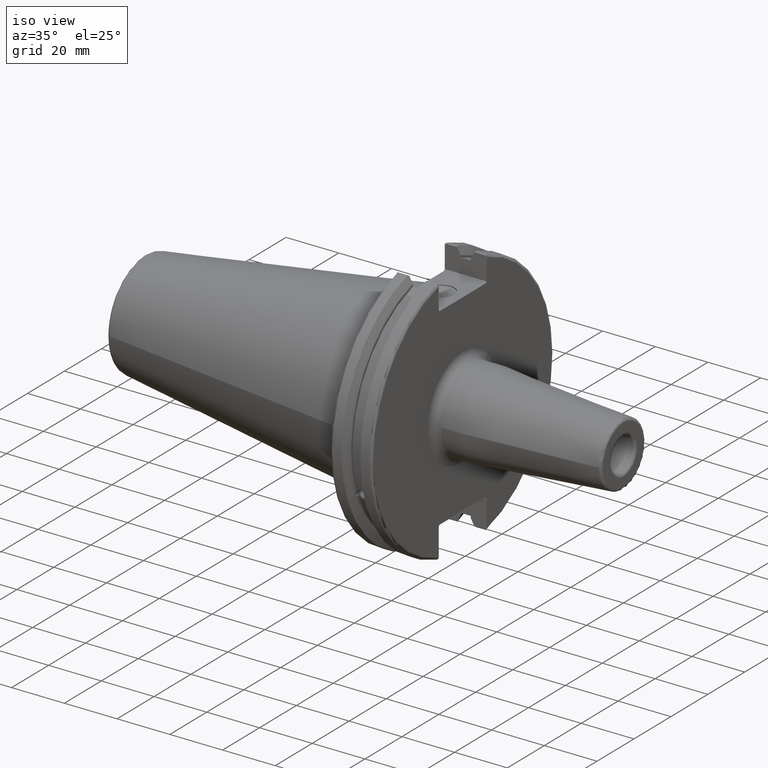
[diagram: clean part render]
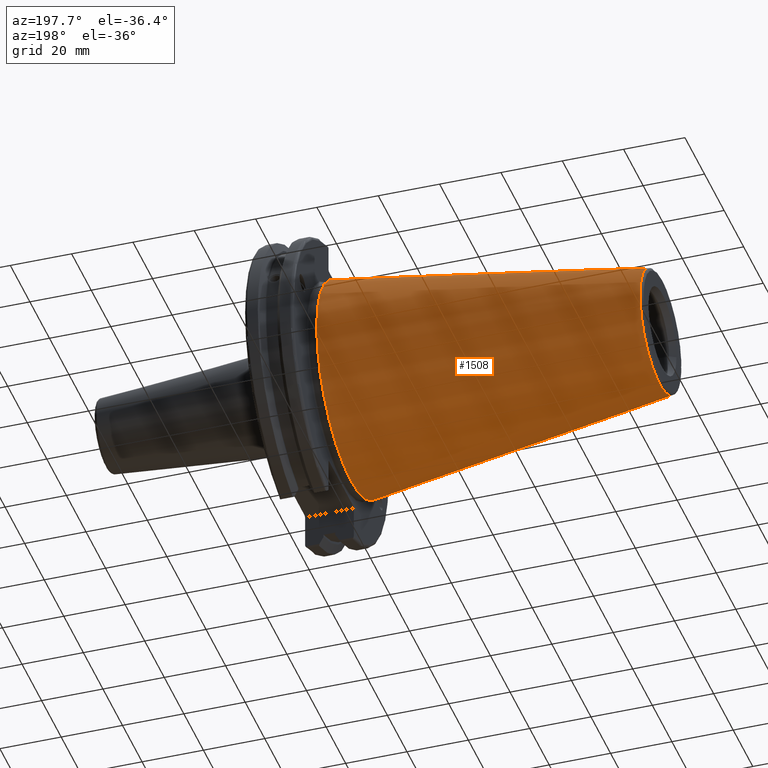
[diagram: tour spotlight — one face highlighted and labeled with its STEP entity id]
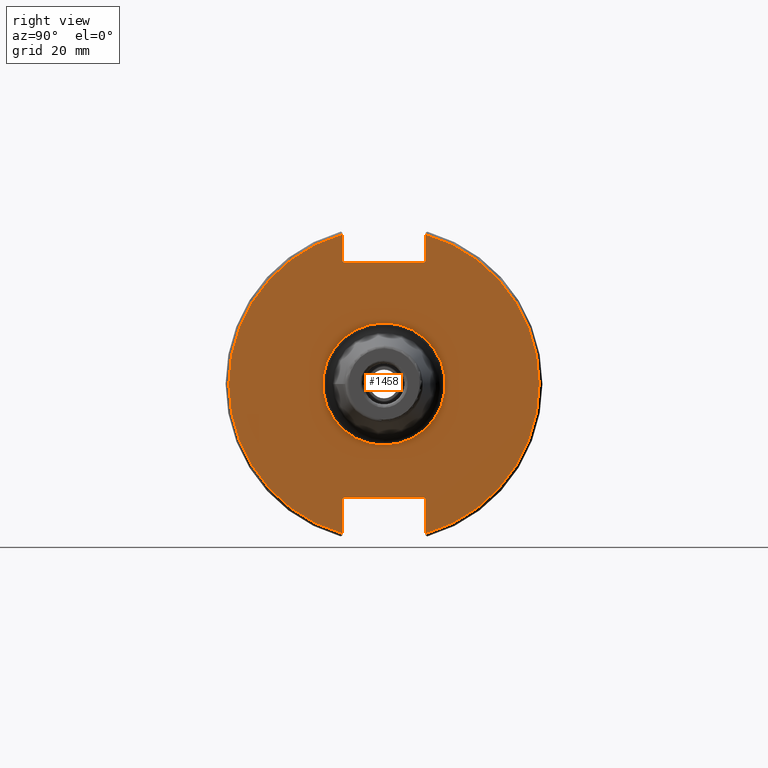
[diagram: tour spotlight — one face highlighted and labeled with its STEP entity id]
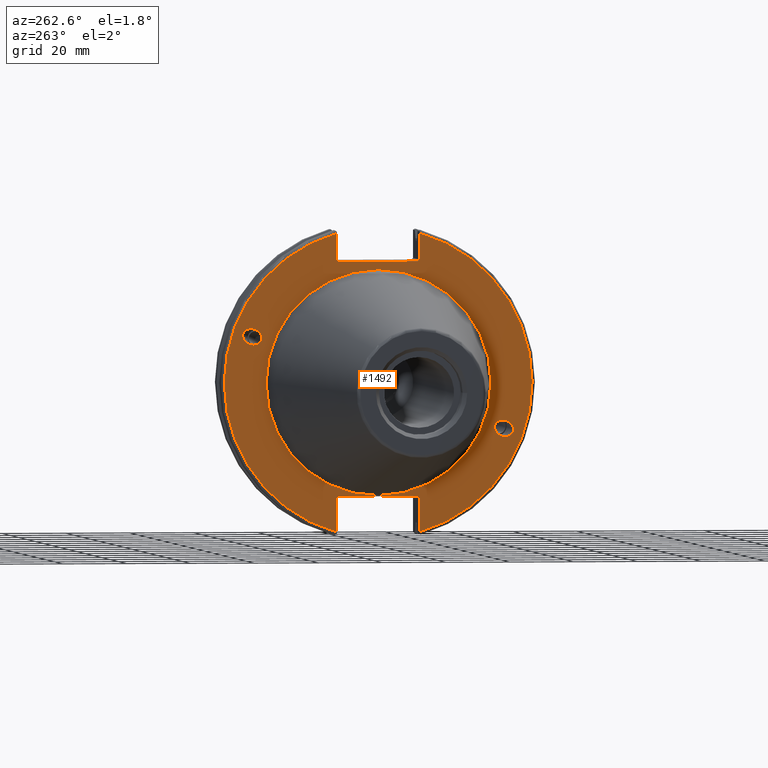
[diagram: tour spotlight — one face highlighted and labeled with its STEP entity id]
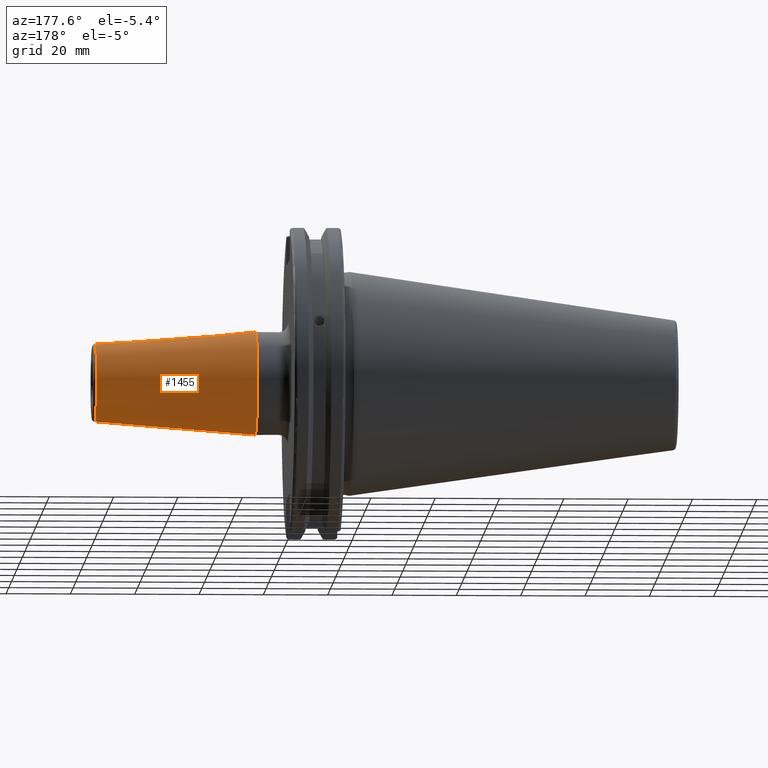
[diagram: tour spotlight — one face highlighted and labeled with its STEP entity id]
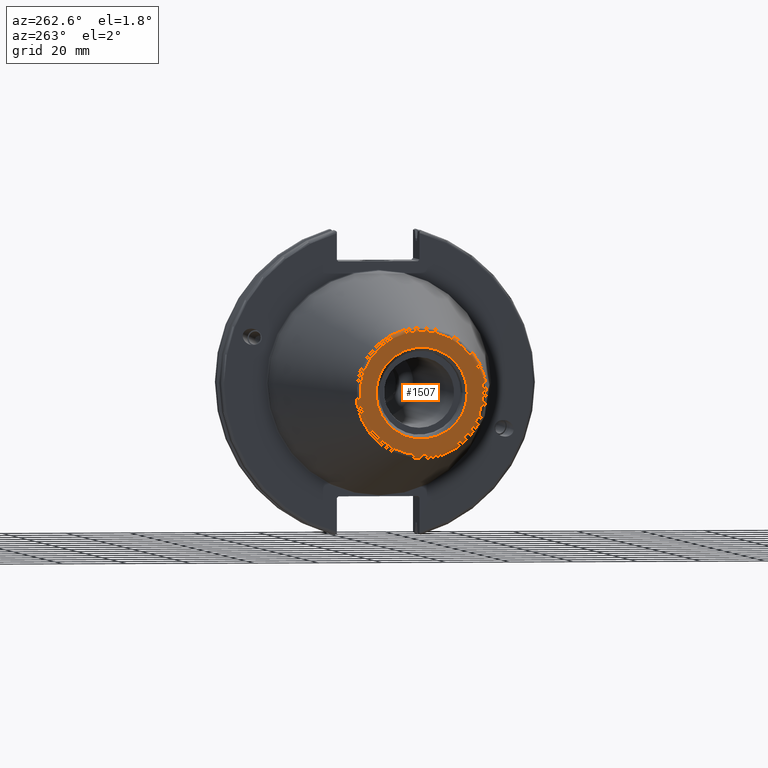
[diagram: tour spotlight — one face highlighted and labeled with its STEP entity id]
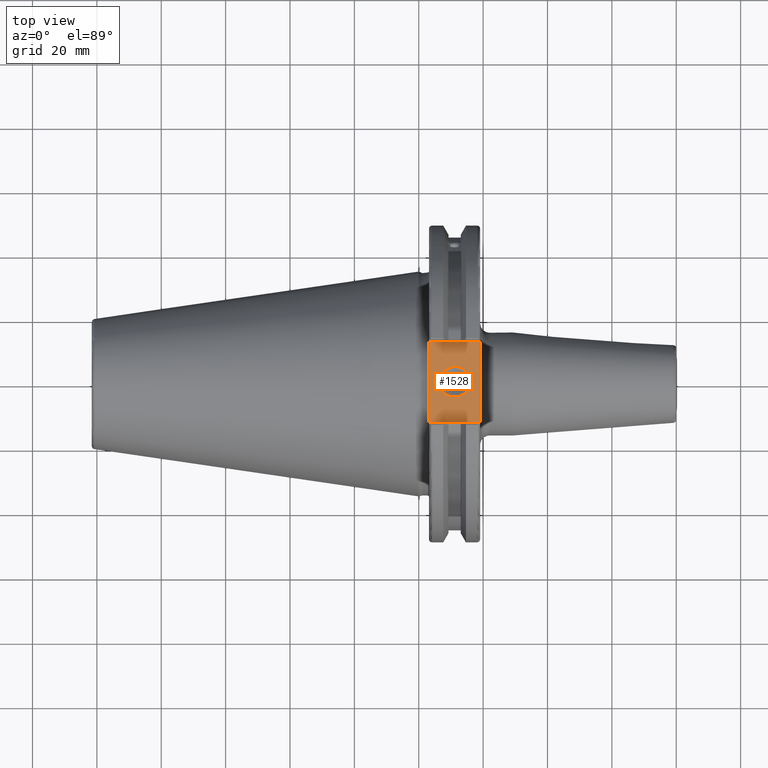
[diagram: tour spotlight — one face highlighted and labeled with its STEP entity id]
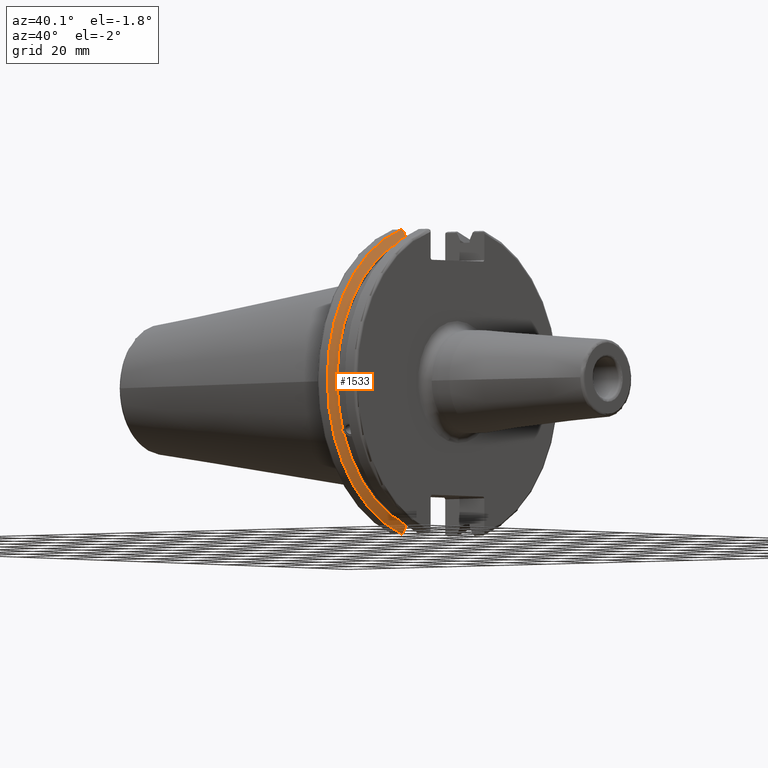
[diagram: tour spotlight — one face highlighted and labeled with its STEP entity id]
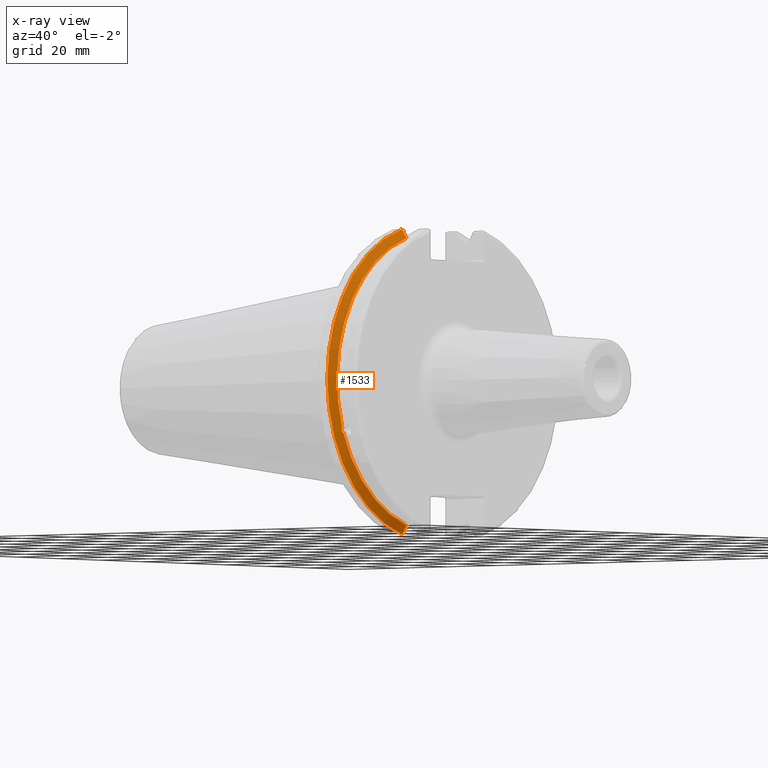
[diagram: x-ray of the same camera — body ghosted, this tour face saturated]
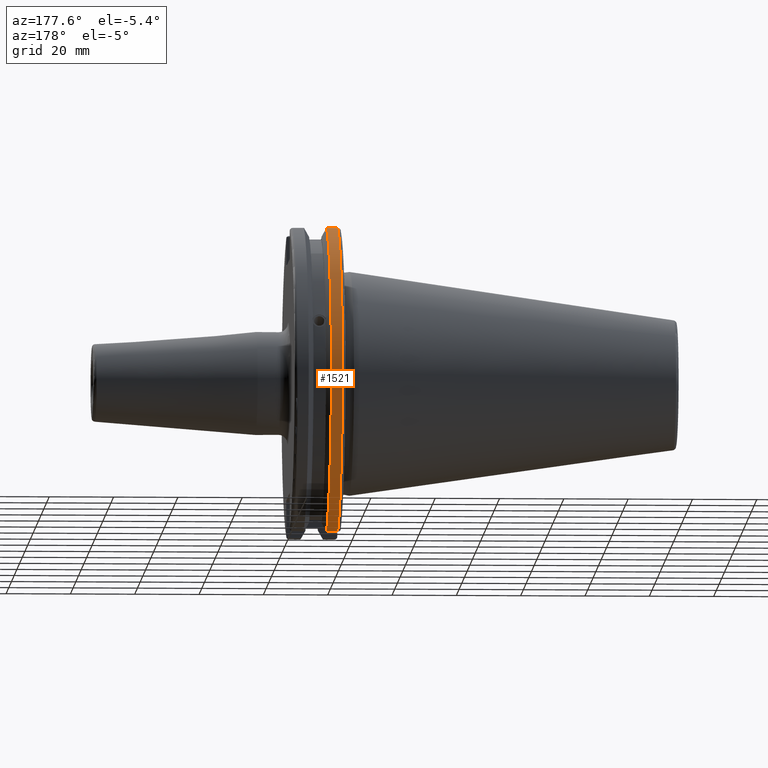
[diagram: tour spotlight — one face highlighted and labeled with its STEP entity id]
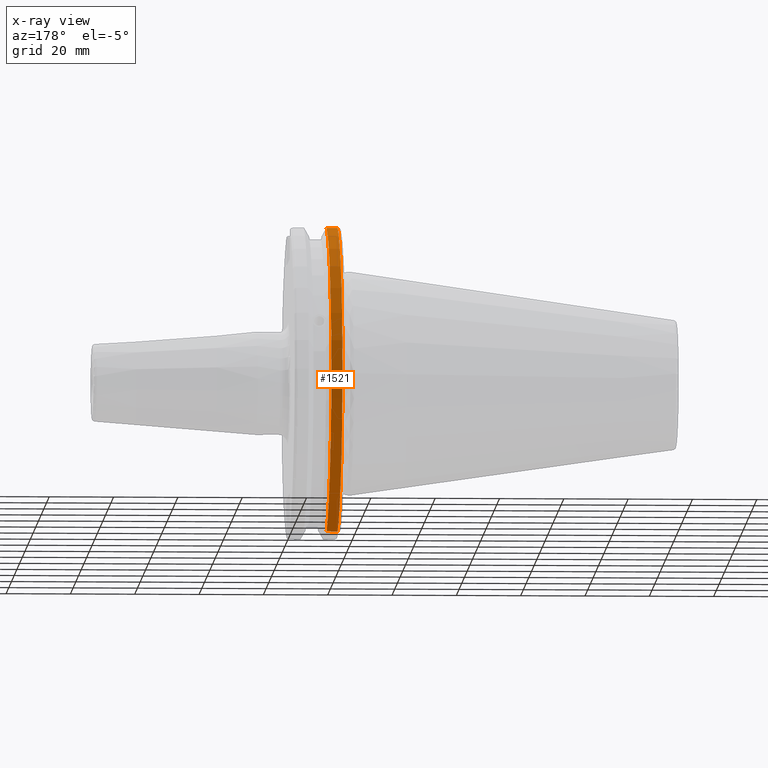
[diagram: x-ray of the same camera — body ghosted, this tour face saturated]
A machine part: a face-by-face anatomy tour. The part has 86 B-rep faces; the first image is the clean iso view, then the 8 largest visible faces are spotlighted one at a time (largest first), each with its STEP entity span.

Face 1 — auxiliary view, entity #1508. In plain terms, the highlighted conical surface has half-angle 8.297 deg.
Definition (entity closure, byte-faithful):
#78=CONICAL_SURFACE('',#1683,27.5166666666666,0.14481249823894);
#156=LINE('',#3004,#248);
#248=VECTOR('',#2048,27.5166666666666);
#409=FACE_OUTER_BOUND('',#513,.T.);
#513=EDGE_LOOP('',(#1310,#1311,#1312,#1313,#1314));
#603=CIRCLE('',#1677,20.233121911427);
#604=CIRCLE('',#1678,20.233121911427);
#608=CIRCLE('',#1684,34.925);
#755=VERTEX_POINT('',#2991);
#756=VERTEX_POINT('',#2992);
#759=VERTEX_POINT('',#3002);
#955=EDGE_CURVE('',#755,#756,#603,.T.);
#956=EDGE_CURVE('',#756,#755,#604,.T.);
#960=EDGE_CURVE('',#759,#759,#608,.T.);
#961=EDGE_CURVE('',#759,#756,#156,.T.);
#1310=ORIENTED_EDGE('',*,*,#960,.F.);
#1311=ORIENTED_EDGE('',*,*,#961,.T.);
#1312=ORIENTED_EDGE('',*,*,#955,.F.);
#1313=ORIENTED_EDGE('',*,*,#956,.F.);
#1314=ORIENTED_EDGE('',*,*,#961,.F.);
#1508=ADVANCED_FACE('',(#409),#78,.T.);
#1677=AXIS2_PLACEMENT_3D('',#2993,#2032,#2033);
#1678=AXIS2_PLACEMENT_3D('',#2994,#2034,#2035);
#1683=AXIS2_PLACEMENT_3D('',#3001,#2044,#2045);
#1684=AXIS2_PLACEMENT_3D('',#3003,#2046,#2047);
#2032=DIRECTION('center_axis',(-1.,0.,0.));
#2033=DIRECTION('ref_axis',(0.,-1.,3.06161699786838E-17));
#2034=DIRECTION('center_axis',(-1.,0.,0.));
#2035=DIRECTION('ref_axis',(0.,-1.,3.06161699786838E-17));
#2044=DIRECTION('center_axis',(1.,0.,0.));
#2045=DIRECTION('ref_axis',(0.,1.,0.));
#2046=DIRECTION('center_axis',(1.,0.,0.));
#2047=DIRECTION('ref_axis',(0.,0.,-1.));
#2048=DIRECTION('',(-0.989532981063281,0.144306893071729,1.76724974695192E-17));
#2991=CARTESIAN_POINT('',(-100.744306893072,-2.47784279855872E-15,20.233121911427));
#2992=CARTESIAN_POINT('',(-100.744306893072,-20.233121911427,-2.47784279855872E-15));
#2993=CARTESIAN_POINT('Origin',(-100.744306893072,0.,-3.09730349819841E-15));
#2994=CARTESIAN_POINT('Origin',(-100.744306893072,0.,-3.09730349819841E-15));
#3001=CARTESIAN_POINT('Origin',(-50.8,0.,0.));
#3002=CARTESIAN_POINT('',(-8.88178419700125E-15,-34.925,-4.27707894602213E-15));
#3003=CARTESIAN_POINT('Origin',(0.,0.,0.));
#3004=CARTESIAN_POINT('',(-50.8,-27.5166666666666,-3.3698197756538E-15));

Face 2 — right view, entity #1458. In plain terms, the highlighted planar face has unit normal (1, 0, 0).
Definition (entity closure, byte-faithful):
#87=LINE('',#2187,#179);
#88=LINE('',#2189,#180);
#89=LINE('',#2191,#181);
#90=LINE('',#2193,#182);
#91=LINE('',#2195,#183);
#92=LINE('',#2199,#184);
#93=LINE('',#2201,#185);
#94=LINE('',#2203,#186);
#95=LINE('',#2205,#187);
#96=LINE('',#2206,#188);
#179=VECTOR('',#1775,10.);
#180=VECTOR('',#1776,10.);
#181=VECTOR('',#1777,10.);
#182=VECTOR('',#1778,10.);
#183=VECTOR('',#1779,10.);
#184=VECTOR('',#1782,10.);
#185=VECTOR('',#1783,10.);
#186=VECTOR('',#1784,10.);
#187=VECTOR('',#1785,10.);
#188=VECTOR('',#1786,10.);
#296=FACE_BOUND('',#447,.T.);
#316=PLANE('',#1581);
#359=FACE_OUTER_BOUND('',#446,.T.);
#446=EDGE_LOOP('',(#1026,#1027,#1028,#1029,#1030,#1031,#1032,#1033,#1034,
#1035,#1036,#1037));
#447=EDGE_LOOP('',(#1038));
#556=CIRCLE('',#1578,19.);
#558=CIRCLE('',#1582,48.2125);
#559=CIRCLE('',#1583,48.2125);
#630=VERTEX_POINT('',#2176);
#631=VERTEX_POINT('',#2183);
#632=VERTEX_POINT('',#2184);
#633=VERTEX_POINT('',#2186);
#634=VERTEX_POINT('',#2188);
#635=VERTEX_POINT('',#2190);
#636=VERTEX_POINT('',#2192);
#637=VERTEX_POINT('',#2194);
#638=VERTEX_POINT('',#2196);
#639=VERTEX_POINT('',#2198);
#640=VERTEX_POINT('',#2200);
#641=VERTEX_POINT('',#2202);
#642=VERTEX_POINT('',#2204);
#784=EDGE_CURVE('',#630,#630,#556,.T.);
#787=EDGE_CURVE('',#631,#632,#558,.T.);
#788=EDGE_CURVE('',#631,#633,#87,.T.);
#789=EDGE_CURVE('',#634,#633,#88,.T.);
#790=EDGE_CURVE('',#634,#635,#89,.T.);
#791=EDGE_CURVE('',#636,#635,#90,.T.);
#792=EDGE_CURVE('',#636,#637,#91,.T.);
#793=EDGE_CURVE('',#638,#637,#559,.T.);
#794=EDGE_CURVE('',#638,#639,#92,.T.);
#795=EDGE_CURVE('',#640,#639,#93,.T.);
#796=EDGE_CURVE('',#640,#641,#94,.T.);
#797=EDGE_CURVE('',#642,#641,#95,.T.);
#798=EDGE_CURVE('',#642,#632,#96,.T.);
#1026=ORIENTED_EDGE('',*,*,#787,.F.);
#1027=ORIENTED_EDGE('',*,*,#788,.T.);
#1028=ORIENTED_EDGE('',*,*,#789,.F.);
#1029=ORIENTED_EDGE('',*,*,#790,.T.);
#1030=ORIENTED_EDGE('',*,*,#791,.F.);
#1031=ORIENTED_EDGE('',*,*,#792,.T.);
#1032=ORIENTED_EDGE('',*,*,#793,.F.);
#1033=ORIENTED_EDGE('',*,*,#794,.T.);
#1034=ORIENTED_EDGE('',*,*,#795,.F.);
#1035=ORIENTED_EDGE('',*,*,#796,.T.);
#1036=ORIENTED_EDGE('',*,*,#797,.F.);
#1037=ORIENTED_EDGE('',*,*,#798,.T.);
#1038=ORIENTED_EDGE('',*,*,#784,.F.);
#1458=ADVANCED_FACE('',(#359,#296),#316,.T.);
#1578=AXIS2_PLACEMENT_3D('',#2178,#1764,#1765);
#1581=AXIS2_PLACEMENT_3D('',#2182,#1771,#1772);
#1582=AXIS2_PLACEMENT_3D('',#2185,#1773,#1774);
#1583=AXIS2_PLACEMENT_3D('',#2197,#1780,#1781);
#1764=DIRECTION('center_axis',(1.,0.,0.));
#1765=DIRECTION('ref_axis',(0.,-1.,-1.22464679914735E-16));
#1771=DIRECTION('center_axis',(1.,0.,0.));
#1772=DIRECTION('ref_axis',(0.,0.,-1.));
#1773=DIRECTION('center_axis',(-1.,0.,0.));
#1774=DIRECTION('ref_axis',(0.,1.,-6.12323399573677E-17));
#1775=DIRECTION('',(0.,0.,-1.));
#1776=DIRECTION('',(0.,0.707106781186549,0.707106781186546));
#1777=DIRECTION('',(0.,-1.,0.));
#1778=DIRECTION('',(0.,0.707106781186549,-0.707106781186546));
#1779=DIRECTION('',(0.,0.,1.));
#1780=DIRECTION('center_axis',(-1.,0.,0.));
#1781=DIRECTION('ref_axis',(0.,-1.,1.60812264967664E-16));
#1782=DIRECTION('',(0.,0.,1.));
#1783=DIRECTION('',(0.,-0.707106781186549,-0.707106781186546));
#1784=DIRECTION('',(0.,1.,0.));
#1785=DIRECTION('',(0.,-0.707106781186549,0.707106781186546));
#1786=DIRECTION('',(0.,0.,-1.));
#2176=CARTESIAN_POINT('',(19.05,-2.32682891837997E-15,-19.));
#2178=CARTESIAN_POINT('Origin',(19.05,0.,0.));
#2182=CARTESIAN_POINT('Origin',(19.05,0.,0.));
#2183=CARTESIAN_POINT('',(19.05,12.95,46.4407434937254));
#2184=CARTESIAN_POINT('',(19.05,12.95,-46.4407434937254));
#2185=CARTESIAN_POINT('Origin',(19.05,0.,0.));
#2186=CARTESIAN_POINT('',(19.05,12.95,38.219));
#2187=CARTESIAN_POINT('',(19.05,12.95,18.8595));
#2188=CARTESIAN_POINT('',(19.05,12.45,37.719));
#2189=CARTESIAN_POINT('',(19.05,0.0327499999999836,25.30175));
#2190=CARTESIAN_POINT('',(19.05,-12.45,37.719));
#2191=CARTESIAN_POINT('',(19.05,0.,37.719));
#2192=CARTESIAN_POINT('',(19.05,-12.95,38.219));
#2193=CARTESIAN_POINT('',(19.05,-0.0327499999999817,25.30175));
#2194=CARTESIAN_POINT('',(19.05,-12.95,46.4407434937254));
#2195=CARTESIAN_POINT('',(19.05,-12.95,18.8595));
#2196=CARTESIAN_POINT('',(19.05,-12.95,-46.4407434937254));
#2197=CARTESIAN_POINT('Origin',(19.05,0.,0.));
#2198=CARTESIAN_POINT('',(19.05,-12.95,-35.806));
#2199=CARTESIAN_POINT('',(19.05,-12.95,-17.653));
#2200=CARTESIAN_POINT('',(19.05,-12.45,-35.306));
#2201=CARTESIAN_POINT('',(19.05,-0.635999999999989,-23.492));
#2202=CARTESIAN_POINT('',(19.05,12.45,-35.306));
#2203=CARTESIAN_POINT('',(19.05,-3.33066907387547E-15,-35.306));
#2204=CARTESIAN_POINT('',(19.05,12.95,-35.806));
#2205=CARTESIAN_POINT('',(19.05,0.635999999999982,-23.492));
#2206=CARTESIAN_POINT('',(19.05,12.95,-17.653));

Face 3 — auxiliary view, entity #1492. In plain terms, the highlighted planar face has unit normal (-1, 0, 0).
Definition (entity closure, byte-faithful):
#31=ELLIPSE('',#1614,3.05193647190364,2.5);
#32=ELLIPSE('',#1648,3.05193647190364,2.5);
#129=LINE('',#2778,#221);
#130=LINE('',#2780,#222);
#131=LINE('',#2782,#223);
#132=LINE('',#2784,#224);
#133=LINE('',#2786,#225);
#134=LINE('',#2790,#226);
#135=LINE('',#2792,#227);
#136=LINE('',#2794,#228);
#137=LINE('',#2796,#229);
#138=LINE('',#2797,#230);
#221=VECTOR('',#1963,10.);
#222=VECTOR('',#1964,10.);
#223=VECTOR('',#1965,10.);
#224=VECTOR('',#1966,10.);
#225=VECTOR('',#1967,10.);
#226=VECTOR('',#1970,10.);
#227=VECTOR('',#1971,10.);
#228=VECTOR('',#1972,10.);
#229=VECTOR('',#1973,10.);
#230=VECTOR('',#1974,10.);
#309=FACE_BOUND('',#494,.T.);
#310=FACE_BOUND('',#495,.T.);
#311=FACE_BOUND('',#496,.T.);
#327=PLANE('',#1654);
#393=FACE_OUTER_BOUND('',#493,.T.);
#493=EDGE_LOOP('',(#1203,#1204,#1205,#1206,#1207,#1208,#1209,#1210,#1211,
#1212,#1213,#1214));
#494=EDGE_LOOP('',(#1215));
#495=EDGE_LOOP('',(#1216));
#496=EDGE_LOOP('',(#1217));
#593=CIRCLE('',#1652,35.125);
#595=CIRCLE('',#1655,48.2125);
#596=CIRCLE('',#1656,48.2125);
#675=VERTEX_POINT('',#2503);
#713=VERTEX_POINT('',#2762);
#716=VERTEX_POINT('',#2769);
#717=VERTEX_POINT('',#2774);
#718=VERTEX_POINT('',#2775);
#719=VERTEX_POINT('',#2777);
#720=VERTEX_POINT('',#2779);
#721=VERTEX_POINT('',#2781);
#722=VERTEX_POINT('',#2783);
#723=VERTEX_POINT('',#2785);
#724=VERTEX_POINT('',#2787);
#725=VERTEX_POINT('',#2789);
#726=VERTEX_POINT('',#2791);
#727=VERTEX_POINT('',#2793);
#728=VERTEX_POINT('',#2795);
#842=EDGE_CURVE('',#675,#675,#31,.T.);
#893=EDGE_CURVE('',#713,#713,#32,.T.);
#896=EDGE_CURVE('',#716,#716,#593,.T.);
#898=EDGE_CURVE('',#717,#718,#595,.T.);
#899=EDGE_CURVE('',#717,#719,#129,.T.);
#900=EDGE_CURVE('',#720,#719,#130,.T.);
#901=EDGE_CURVE('',#720,#721,#131,.T.);
#902=EDGE_CURVE('',#722,#721,#132,.T.);
#903=EDGE_CURVE('',#722,#723,#133,.T.);
#904=EDGE_CURVE('',#724,#723,#596,.T.);
#905=EDGE_CURVE('',#724,#725,#134,.T.);
#906=EDGE_CURVE('',#726,#725,#135,.T.);
#907=EDGE_CURVE('',#726,#727,#136,.T.);
#908=EDGE_CURVE('',#728,#727,#137,.T.);
#909=EDGE_CURVE('',#728,#718,#138,.T.);
#1203=ORIENTED_EDGE('',*,*,#898,.F.);
#1204=ORIENTED_EDGE('',*,*,#899,.T.);
#1205=ORIENTED_EDGE('',*,*,#900,.F.);
#1206=ORIENTED_EDGE('',*,*,#901,.T.);
#1207=ORIENTED_EDGE('',*,*,#902,.F.);
#1208=ORIENTED_EDGE('',*,*,#903,.T.);
#1209=ORIENTED_EDGE('',*,*,#904,.F.);
#1210=ORIENTED_EDGE('',*,*,#905,.T.);
#1211=ORIENTED_EDGE('',*,*,#906,.F.);
#1212=ORIENTED_EDGE('',*,*,#907,.T.);
#1213=ORIENTED_EDGE('',*,*,#908,.F.);
#1214=ORIENTED_EDGE('',*,*,#909,.T.);
#1215=ORIENTED_EDGE('',*,*,#842,.T.);
#1216=ORIENTED_EDGE('',*,*,#893,.T.);
#1217=ORIENTED_EDGE('',*,*,#896,.F.);
#1492=ADVANCED_FACE('',(#393,#309,#310,#311),#327,.T.);
#1614=AXIS2_PLACEMENT_3D('',#2505,#1863,#1864);
#1648=AXIS2_PLACEMENT_3D('',#2764,#1947,#1948);
#1652=AXIS2_PLACEMENT_3D('',#2771,#1955,#1956);
#1654=AXIS2_PLACEMENT_3D('',#2773,#1959,#1960);
#1655=AXIS2_PLACEMENT_3D('',#2776,#1961,#1962);
#1656=AXIS2_PLACEMENT_3D('',#2788,#1968,#1969);
#1863=DIRECTION('center_axis',(1.,0.,0.));
#1864=DIRECTION('ref_axis',(0.,-0.939692620785908,-0.342020143325668));
#1947=DIRECTION('center_axis',(1.,0.,0.));
#1948=DIRECTION('ref_axis',(0.,0.939692620785908,0.342020143325669));
#1955=DIRECTION('center_axis',(-1.,0.,0.));
#1956=DIRECTION('ref_axis',(0.,-1.,1.83697019872103E-16));
#1959=DIRECTION('center_axis',(-1.,0.,0.));
#1960=DIRECTION('ref_axis',(0.,0.,1.));
#1961=DIRECTION('center_axis',(1.,0.,0.));
#1962=DIRECTION('ref_axis',(0.,-1.,1.60812264967664E-16));
#1963=DIRECTION('',(0.,0.,-1.));
#1964=DIRECTION('',(0.,-0.707106781186549,0.707106781186546));
#1965=DIRECTION('',(0.,1.,0.));
#1966=DIRECTION('',(0.,-0.707106781186549,-0.707106781186546));
#1967=DIRECTION('',(0.,0.,1.));
#1968=DIRECTION('center_axis',(1.,0.,0.));
#1969=DIRECTION('ref_axis',(0.,1.,-6.12323399573677E-17));
#1970=DIRECTION('',(0.,0.,1.));
#1971=DIRECTION('',(0.,0.707106781186549,-0.707106781186546));
#1972=DIRECTION('',(0.,-1.,0.));
#1973=DIRECTION('',(0.,0.707106781186549,0.707106781186546));
#1974=DIRECTION('',(0.,0.,-1.));
#2503=CARTESIAN_POINT('',(3.175,-36.5992078912529,-13.3210222701368));
#2505=CARTESIAN_POINT('Origin',(3.175,-39.4670900730082,-14.3648460196781));
#2762=CARTESIAN_POINT('',(3.175,36.5992078912529,13.3210222701368));
#2764=CARTESIAN_POINT('Origin',(3.175,39.4670900730082,14.3648460196781));
#2769=CARTESIAN_POINT('',(3.175,-4.30157188200508E-15,35.125));
#2771=CARTESIAN_POINT('Origin',(3.175,0.,0.));
#2773=CARTESIAN_POINT('Origin',(3.175,49.2125,0.));
#2774=CARTESIAN_POINT('',(3.175,-12.95,46.4407434937254));
#2775=CARTESIAN_POINT('',(3.175,-12.95,-46.4407434937254));
#2776=CARTESIAN_POINT('Origin',(3.175,0.,0.));
#2777=CARTESIAN_POINT('',(3.175,-12.95,38.219));
#2778=CARTESIAN_POINT('',(3.175,-12.95,18.8595));
#2779=CARTESIAN_POINT('',(3.175,-12.45,37.719));
#2780=CARTESIAN_POINT('',(3.175,12.2703750000001,12.998625));
#2781=CARTESIAN_POINT('',(3.175,12.45,37.719));
#2782=CARTESIAN_POINT('',(3.175,24.60625,37.719));
#2783=CARTESIAN_POINT('',(3.175,12.95,38.219));
#2784=CARTESIAN_POINT('',(3.175,12.335875,37.604875));
#2785=CARTESIAN_POINT('',(3.175,12.95,46.4407434937254));
#2786=CARTESIAN_POINT('',(3.175,12.95,18.8595));
#2787=CARTESIAN_POINT('',(3.175,12.95,-46.4407434937254));
#2788=CARTESIAN_POINT('Origin',(3.175,0.,0.));
#2789=CARTESIAN_POINT('',(3.175,12.95,-35.806));
#2790=CARTESIAN_POINT('',(3.175,12.95,-17.653));
#2791=CARTESIAN_POINT('',(3.175,12.45,-35.306));
#2792=CARTESIAN_POINT('',(3.175,12.939125,-35.795125));
#2793=CARTESIAN_POINT('',(3.175,-12.45,-35.306));
#2794=CARTESIAN_POINT('',(3.175,24.60625,-35.306));
#2795=CARTESIAN_POINT('',(3.175,-12.95,-35.806));
#2796=CARTESIAN_POINT('',(3.175,11.6671250000001,-11.188875));
#2797=CARTESIAN_POINT('',(3.175,-12.95,-17.653));

Face 4 — auxiliary view, entity #1455. In plain terms, the highlighted conical surface has half-angle 4.5 deg.
Definition (entity closure, byte-faithful):
#71=CONICAL_SURFACE('',#1573,14.,0.0785398163397444);
#85=LINE('',#2170,#177);
#177=VECTOR('',#1755,14.);
#356=FACE_OUTER_BOUND('',#443,.T.);
#443=EDGE_LOOP('',(#1011,#1012,#1013,#1014,#1015));
#551=CIRCLE('',#1571,12.0725268420749);
#552=CIRCLE('',#1572,12.0725268420749);
#553=CIRCLE('',#1574,16.);
#625=VERTEX_POINT('',#2163);
#626=VERTEX_POINT('',#2165);
#627=VERTEX_POINT('',#2169);
#778=EDGE_CURVE('',#625,#626,#551,.T.);
#779=EDGE_CURVE('',#626,#625,#552,.T.);
#780=EDGE_CURVE('',#626,#627,#85,.T.);
#781=EDGE_CURVE('',#627,#627,#553,.T.);
#1011=ORIENTED_EDGE('',*,*,#779,.F.);
#1012=ORIENTED_EDGE('',*,*,#780,.T.);
#1013=ORIENTED_EDGE('',*,*,#781,.T.);
#1014=ORIENTED_EDGE('',*,*,#780,.F.);
#1015=ORIENTED_EDGE('',*,*,#778,.F.);
#1455=ADVANCED_FACE('',(#356),#71,.T.);
#1571=AXIS2_PLACEMENT_3D('',#2166,#1749,#1750);
#1572=AXIS2_PLACEMENT_3D('',#2167,#1751,#1752);
#1573=AXIS2_PLACEMENT_3D('',#2168,#1753,#1754);
#1574=AXIS2_PLACEMENT_3D('',#2171,#1756,#1757);
#1749=DIRECTION('center_axis',(1.,0.,0.));
#1750=DIRECTION('ref_axis',(0.,-1.,3.06161699786838E-17));
#1751=DIRECTION('center_axis',(1.,0.,0.));
#1752=DIRECTION('ref_axis',(0.,-1.,3.06161699786838E-17));
#1753=DIRECTION('center_axis',(-1.,0.,0.));
#1754=DIRECTION('ref_axis',(0.,1.,0.));
#1755=DIRECTION('',(-0.996917333733128,-0.0784590957278445,-9.60846804471006E-18));
#1756=DIRECTION('center_axis',(1.,0.,0.));
#1757=DIRECTION('ref_axis',(0.,0.,-1.));
#2163=CARTESIAN_POINT('',(79.0784590957279,-1.47845813547676E-15,12.0725268420749));
#2165=CARTESIAN_POINT('',(79.0784590957279,-12.0725268420749,-1.47845813547676E-15));
#2166=CARTESIAN_POINT('Origin',(79.0784590957279,0.,-1.84807266934594E-15));
#2167=CARTESIAN_POINT('Origin',(79.0784590957279,0.,-1.84807266934594E-15));
#2168=CARTESIAN_POINT('Origin',(54.5875905276505,0.,0.));
#2169=CARTESIAN_POINT('',(29.1751810553009,-16.,-1.95943487863577E-15));
#2170=CARTESIAN_POINT('',(54.5875905276505,-14.,-1.71450551880629E-15));
#2171=CARTESIAN_POINT('Origin',(29.1751810553009,0.,0.));

Face 5 — auxiliary view, entity #1507. In plain terms, the highlighted planar face has unit normal (-1, 0, 0).
Definition (entity closure, byte-faithful):
#312=FACE_BOUND('',#512,.T.);
#335=PLANE('',#1681);
#408=FACE_OUTER_BOUND('',#511,.T.);
#511=EDGE_LOOP('',(#1308));
#512=EDGE_LOOP('',(#1309));
#606=CIRCLE('',#1680,19.2435889303637);
#607=CIRCLE('',#1682,14.2875);
#757=VERTEX_POINT('',#2995);
#758=VERTEX_POINT('',#2999);
#958=EDGE_CURVE('',#757,#757,#606,.T.);
#959=EDGE_CURVE('',#758,#758,#607,.T.);
#1308=ORIENTED_EDGE('',*,*,#958,.F.);
#1309=ORIENTED_EDGE('',*,*,#959,.T.);
#1507=ADVANCED_FACE('',(#408,#312),#335,.T.);
#1680=AXIS2_PLACEMENT_3D('',#2997,#2038,#2039);
#1681=AXIS2_PLACEMENT_3D('',#2998,#2040,#2041);
#1682=AXIS2_PLACEMENT_3D('',#3000,#2042,#2043);
#2038=DIRECTION('center_axis',(1.,0.,0.));
#2039=DIRECTION('ref_axis',(0.,-1.,1.83697019872103E-16));
#2040=DIRECTION('center_axis',(-1.,0.,0.));
#2041=DIRECTION('ref_axis',(0.,0.,1.));
#2042=DIRECTION('center_axis',(1.,0.,0.));
#2043=DIRECTION('ref_axis',(0.,0.,-1.));
#2995=CARTESIAN_POINT('',(-101.6,-2.35665995876774E-15,19.2435889303637));
#2997=CARTESIAN_POINT('Origin',(-101.6,0.,0.));
#2998=CARTESIAN_POINT('Origin',(-101.6,20.1083333333333,0.));
#2999=CARTESIAN_POINT('',(-101.6,-14.2875,-1.74971411428178E-15));
#3000=CARTESIAN_POINT('Origin',(-101.6,0.,0.));

Face 6 — top view, entity #1528. In plain terms, the highlighted planar face has unit normal (0, 0, 1).
Definition (entity closure, byte-faithful):
#89=LINE('',#2191,#181);
#131=LINE('',#2782,#223);
#159=LINE('',#3011,#251);
#161=LINE('',#3014,#253);
#181=VECTOR('',#1777,10.);
#223=VECTOR('',#1965,10.);
#251=VECTOR('',#2059,10.);
#253=VECTOR('',#2063,10.);
#313=FACE_BOUND('',#534,.T.);
#348=PLANE('',#1710);
#429=FACE_OUTER_BOUND('',#533,.T.);
#533=EDGE_LOOP('',(#1403,#1404,#1405,#1406));
#534=EDGE_LOOP('',(#1407));
#611=CIRCLE('',#1702,4.7625);
#634=VERTEX_POINT('',#2188);
#635=VERTEX_POINT('',#2190);
#720=VERTEX_POINT('',#2779);
#721=VERTEX_POINT('',#2781);
#767=VERTEX_POINT('',#3050);
#790=EDGE_CURVE('',#634,#635,#89,.T.);
#901=EDGE_CURVE('',#720,#721,#131,.T.);
#964=EDGE_CURVE('',#635,#720,#159,.T.);
#966=EDGE_CURVE('',#721,#634,#161,.T.);
#981=EDGE_CURVE('',#767,#767,#611,.T.);
#1403=ORIENTED_EDGE('',*,*,#964,.F.);
#1404=ORIENTED_EDGE('',*,*,#790,.F.);
#1405=ORIENTED_EDGE('',*,*,#966,.F.);
#1406=ORIENTED_EDGE('',*,*,#901,.F.);
#1407=ORIENTED_EDGE('',*,*,#981,.T.);
#1528=ADVANCED_FACE('',(#429,#313),#348,.T.);
#1702=AXIS2_PLACEMENT_3D('',#3051,#2098,#2099);
#1710=AXIS2_PLACEMENT_3D('',#3060,#2115,#2116);
#1777=DIRECTION('',(0.,-1.,0.));
#1965=DIRECTION('',(0.,1.,0.));
#2059=DIRECTION('',(-1.,1.31581988103722E-16,0.));
#2063=DIRECTION('',(1.,0.,0.));
#2098=DIRECTION('center_axis',(0.,0.,-1.));
#2099=DIRECTION('ref_axis',(1.,0.,0.));
#2115=DIRECTION('center_axis',(0.,0.,1.));
#2116=DIRECTION('ref_axis',(1.,0.,0.));
#2188=CARTESIAN_POINT('',(19.05,12.45,37.719));
#2190=CARTESIAN_POINT('',(19.05,-12.45,37.719));
#2191=CARTESIAN_POINT('',(19.05,0.,37.719));
#2779=CARTESIAN_POINT('',(3.175,-12.45,37.719));
#2781=CARTESIAN_POINT('',(3.175,12.45,37.719));
#2782=CARTESIAN_POINT('',(3.175,24.60625,37.719));
#3011=CARTESIAN_POINT('',(10.63125,-12.45,37.719));
#3014=CARTESIAN_POINT('',(19.06875,12.45,37.719));
#3050=CARTESIAN_POINT('',(6.3716,-5.83238038093927E-16,37.719));
#3051=CARTESIAN_POINT('Origin',(11.1341,0.,37.719));
#3060=CARTESIAN_POINT('Origin',(18.0875,0.,37.719));

Face 7 — auxiliary view, entity #1533. An x-ray twin of the same camera follows (body ghosted, this face saturated) — the face is partly hidden behind the body. In plain terms, the highlighted conical surface has half-angle 60 deg.
Definition (entity closure, byte-faithful):
#25=(
BOUNDED_CURVE()
B_SPLINE_CURVE(2,(#2903,#2904,#2905),.UNSPECIFIED.,.F.,.F.)
B_SPLINE_CURVE_WITH_KNOTS((3,3),(0.,0.275823910674601),.UNSPECIFIED.)
CURVE()
GEOMETRIC_REPRESENTATION_ITEM()
RATIONAL_B_SPLINE_CURVE((1.,1.00038235573593,1.00012873636487))
REPRESENTATION_ITEM('')
);
#26=(
BOUNDED_CURVE()
B_SPLINE_CURVE(2,(#2915,#2916,#2917),.UNSPECIFIED.,.F.,.F.)
B_SPLINE_CURVE_WITH_KNOTS((3,3),(0.0558332664507492,0.331657177124507),
 .UNSPECIFIED.)
CURVE()
GEOMETRIC_REPRESENTATION_ITEM()
RATIONAL_B_SPLINE_CURVE((1.00012873636807,1.00038235574544,1.))
REPRESENTATION_ITEM('')
);
#27=(
BOUNDED_CURVE()
B_SPLINE_CURVE(2,(#2950,#2951,#2952),.UNSPECIFIED.,.F.,.F.)
B_SPLINE_CURVE_WITH_KNOTS((3,3),(0.,0.0648240472897372),.UNSPECIFIED.)
CURVE()
GEOMETRIC_REPRESENTATION_ITEM()
RATIONAL_B_SPLINE_CURVE((1.,1.00011477674836,1.00019140645948))
REPRESENTATION_ITEM('')
);
#28=(
BOUNDED_CURVE()
B_SPLINE_CURVE(2,(#2958,#2959,#2960),.UNSPECIFIED.,.F.,.F.)
B_SPLINE_CURVE_WITH_KNOTS((3,3),(0.325260944932348,0.390084992222201),
 .UNSPECIFIED.)
CURVE()
GEOMETRIC_REPRESENTATION_ITEM()
RATIONAL_B_SPLINE_CURVE((1.00019140645916,1.00011477674817,1.))
REPRESENTATION_ITEM('')
);
#43=B_SPLINE_CURVE_WITH_KNOTS('',3,(#2447,#2448,#2449,#2450,#2451,#2452,
#2453,#2454,#2455,#2456,#2457,#2458,#2459,#2460),.UNSPECIFIED.,.F.,.F.,
(4,2,2,2,2,2,4),(0.426712868358719,0.441644498666906,0.48031331322313,0.518982127779354,
0.557650942335578,0.596319756891801,0.611251387199988),.UNSPECIFIED.);
#83=CONICAL_SURFACE('',#1717,47.8172386482472,1.0471975511966);
#434=FACE_OUTER_BOUND('',#540,.T.);
#540=EDGE_LOOP('',(#1422,#1423,#1424,#1425,#1426,#1427,#1428,#1429));
#579=CIRCLE('',#1624,46.4219772964944);
#601=CIRCLE('',#1671,49.2125);
#617=CIRCLE('',#1718,46.4219772964944);
#666=VERTEX_POINT('',#2444);
#667=VERTEX_POINT('',#2446);
#684=VERTEX_POINT('',#2537);
#742=VERTEX_POINT('',#2900);
#743=VERTEX_POINT('',#2902);
#746=VERTEX_POINT('',#2914);
#750=VERTEX_POINT('',#2948);
#751=VERTEX_POINT('',#2954);
#831=EDGE_CURVE('',#667,#666,#43,.T.);
#854=EDGE_CURVE('',#667,#684,#579,.T.);
#932=EDGE_CURVE('',#743,#742,#25,.T.);
#938=EDGE_CURVE('',#746,#684,#26,.T.);
#946=EDGE_CURVE('',#750,#742,#27,.T.);
#948=EDGE_CURVE('',#750,#751,#601,.T.);
#949=EDGE_CURVE('',#746,#751,#28,.T.);
#991=EDGE_CURVE('',#743,#666,#617,.T.);
#1422=ORIENTED_EDGE('',*,*,#831,.T.);
#1423=ORIENTED_EDGE('',*,*,#991,.F.);
#1424=ORIENTED_EDGE('',*,*,#932,.T.);
#1425=ORIENTED_EDGE('',*,*,#946,.F.);
#1426=ORIENTED_EDGE('',*,*,#948,.T.);
#1427=ORIENTED_EDGE('',*,*,#949,.F.);
#1428=ORIENTED_EDGE('',*,*,#938,.T.);
#1429=ORIENTED_EDGE('',*,*,#854,.F.);
#1533=ADVANCED_FACE('',(#434),#83,.T.);
#1624=AXIS2_PLACEMENT_3D('',#2538,#1885,#1886);
#1671=AXIS2_PLACEMENT_3D('',#2956,#2019,#2020);
#1717=AXIS2_PLACEMENT_3D('',#3072,#2132,#2133);
#1718=AXIS2_PLACEMENT_3D('',#3073,#2134,#2135);
#1885=DIRECTION('center_axis',(1.,0.,0.));
#1886=DIRECTION('ref_axis',(0.,0.,-1.));
#2019=DIRECTION('center_axis',(1.,0.,0.));
#2020=DIRECTION('ref_axis',(0.,0.,-1.));
#2132=DIRECTION('center_axis',(-1.,0.,0.));
#2133=DIRECTION('ref_axis',(0.,-1.,-1.22464679914735E-16));
#2134=DIRECTION('center_axis',(1.,0.,0.));
#2135=DIRECTION('ref_axis',(0.,0.,-1.));
#2444=CARTESIAN_POINT('',(9.2191,-43.9096390749305,-15.0646464421033));
#2446=CARTESIAN_POINT('',(9.2191,-43.3201030900029,-16.684383248648));
#2447=CARTESIAN_POINT('Ctrl Pts',(9.21910000000001,-43.3201030900029,-16.6843832486479));
#2448=CARTESIAN_POINT('Ctrl Pts',(9.20211843903392,-43.3613106941341,-16.6592273018006));
#2449=CARTESIAN_POINT('Ctrl Pts',(9.18608675403322,-43.4012416983557,-16.6326763251437));
#2450=CARTESIAN_POINT('Ctrl Pts',(9.13238673845037,-43.5391037343221,-16.5325130832406));
#2451=CARTESIAN_POINT('Ctrl Pts',(9.09621610663556,-43.6406982153491,-16.441180795372));
#2452=CARTESIAN_POINT('Ctrl Pts',(9.04690868251975,-43.8110833825827,-16.2291323464527));
#2453=CARTESIAN_POINT('Ctrl Pts',(9.0341,-43.8794096049168,-16.10796730316));
#2454=CARTESIAN_POINT('Ctrl Pts',(9.0341,-43.9675796948952,-15.8657219718732));
#2455=CARTESIAN_POINT('Ctrl Pts',(9.04690868251975,-43.9931221605126,-15.7289849146254));
#2456=CARTESIAN_POINT('Ctrl Pts',(9.09621610663556,-43.9989016655819,-15.4570249042867));
#2457=CARTESIAN_POINT('Ctrl Pts',(9.13238673845037,-43.9797830409458,-15.3217566390708));
#2458=CARTESIAN_POINT('Ctrl Pts',(9.18608675403322,-43.9385582852181,-15.1564111356409));
#2459=CARTESIAN_POINT('Ctrl Pts',(9.20211843903392,-43.9250360001461,-15.1104047527575));
#2460=CARTESIAN_POINT('Ctrl Pts',(9.2191,-43.9096390749305,-15.0646464421033));
#2537=CARTESIAN_POINT('',(9.2191,-12.95,-44.5791147973604));
#2538=CARTESIAN_POINT('Origin',(9.2191,0.,0.));
#2900=CARTESIAN_POINT('',(7.88638960562424,-12.95,46.9780755322918));
#2902=CARTESIAN_POINT('',(9.2191,-12.95,44.5791147973604));
#2903=CARTESIAN_POINT('Ctrl Pts',(9.2191,-12.95,44.5791147973604));
#2904=CARTESIAN_POINT('Ctrl Pts',(8.57020449055857,-12.95,45.7494966802148));
#2905=CARTESIAN_POINT('Ctrl Pts',(7.88638960562424,-12.95,46.9780755322918));
#2914=CARTESIAN_POINT('',(7.88638960562425,-12.95,-46.9780755322918));
#2915=CARTESIAN_POINT('Ctrl Pts',(7.88638960562425,-12.95,-46.9780755322918));
#2916=CARTESIAN_POINT('Ctrl Pts',(8.57020449054166,-12.95,-45.7494966802452));
#2917=CARTESIAN_POINT('Ctrl Pts',(9.2191,-12.95,-44.5791147973604));
#2948=CARTESIAN_POINT('',(7.60799096595127,-13.4317035994433,47.3440544806494));
#2950=CARTESIAN_POINT('Ctrl Pts',(7.60799096595126,-13.4317035994433,47.3440544806494));
#2951=CARTESIAN_POINT('Ctrl Pts',(7.7482689666382,-13.1896660169966,47.1601640966265));
#2952=CARTESIAN_POINT('Ctrl Pts',(7.88638960562424,-12.95,46.9780755322918));
#2954=CARTESIAN_POINT('',(7.60799096595127,-13.4317035994433,-47.3440544806494));
#2956=CARTESIAN_POINT('Origin',(7.60799096595127,0.,0.));
#2958=CARTESIAN_POINT('Ctrl Pts',(7.88638960562425,-12.95,-46.9780755322918));
#2959=CARTESIAN_POINT('Ctrl Pts',(7.74826896663813,-13.1896660169967,-47.1601640966265));
#2960=CARTESIAN_POINT('Ctrl Pts',(7.60799096595127,-13.4317035994434,-47.3440544806494));
#3072=CARTESIAN_POINT('Origin',(8.41354548297563,0.,0.));
#3073=CARTESIAN_POINT('Origin',(9.2191,0.,0.));

Face 8 — auxiliary view, entity #1521. An x-ray twin of the same camera follows (body ghosted, this face saturated) — the face is partly hidden behind the body. In plain terms, the highlighted cylindrical surface (partial cylindrical patch) has radius 49.2125 mm, axis along (1, 0, 0).
Definition (entity closure, byte-faithful):
#155=LINE('',#2989,#247);
#170=LINE('',#3042,#262);
#247=VECTOR('',#2029,10.);
#262=VECTOR('',#2088,10.);
#290=CYLINDRICAL_SURFACE('',#1698,49.2125);
#422=FACE_OUTER_BOUND('',#526,.T.);
#526=EDGE_LOOP('',(#1371,#1372,#1373,#1374));
#583=CIRCLE('',#1633,49.2125);
#602=CIRCLE('',#1674,49.2125);
#702=VERTEX_POINT('',#2722);
#703=VERTEX_POINT('',#2726);
#753=VERTEX_POINT('',#2963);
#754=VERTEX_POINT('',#2972);
#877=EDGE_CURVE('',#702,#703,#583,.T.);
#951=EDGE_CURVE('',#753,#754,#602,.T.);
#954=EDGE_CURVE('',#754,#702,#155,.T.);
#978=EDGE_CURVE('',#703,#753,#170,.T.);
#1371=ORIENTED_EDGE('',*,*,#951,.F.);
#1372=ORIENTED_EDGE('',*,*,#978,.F.);
#1373=ORIENTED_EDGE('',*,*,#877,.F.);
#1374=ORIENTED_EDGE('',*,*,#954,.F.);
#1521=ADVANCED_FACE('',(#422),#290,.T.);
#1633=AXIS2_PLACEMENT_3D('',#2727,#1911,#1912);
#1674=AXIS2_PLACEMENT_3D('',#2973,#2025,#2026);
#1698=AXIS2_PLACEMENT_3D('',#3043,#2089,#2090);
#1911=DIRECTION('center_axis',(1.,0.,0.));
#1912=DIRECTION('ref_axis',(0.,0.,-1.));
#2025=DIRECTION('center_axis',(-1.,0.,0.));
#2026=DIRECTION('ref_axis',(0.,1.,-6.12323399573677E-17));
#2029=DIRECTION('',(1.,0.,0.));
#2088=DIRECTION('',(-1.,0.,0.));
#2089=DIRECTION('center_axis',(1.,0.,0.));
#2090=DIRECTION('ref_axis',(0.,1.,0.));
#2722=CARTESIAN_POINT('',(7.60799096595127,13.4317035994433,-47.3440544806494));
#2726=CARTESIAN_POINT('',(7.60799096595127,13.4317035994433,47.3440544806494));
#2727=CARTESIAN_POINT('Origin',(7.60799096595127,0.,0.));
#2963=CARTESIAN_POINT('',(4.175,13.4317035994433,47.3440544806494));
#2972=CARTESIAN_POINT('',(4.175,13.4317035994433,-47.3440544806494));
#2973=CARTESIAN_POINT('Origin',(4.175,0.,0.));
#2989=CARTESIAN_POINT('',(5.39149548297563,13.4317035994433,-47.3440544806494));
#3042=CARTESIAN_POINT('',(5.39149548297563,13.4317035994433,47.3440544806494));
#3043=CARTESIAN_POINT('Origin',(5.39149548297563,0.,0.));